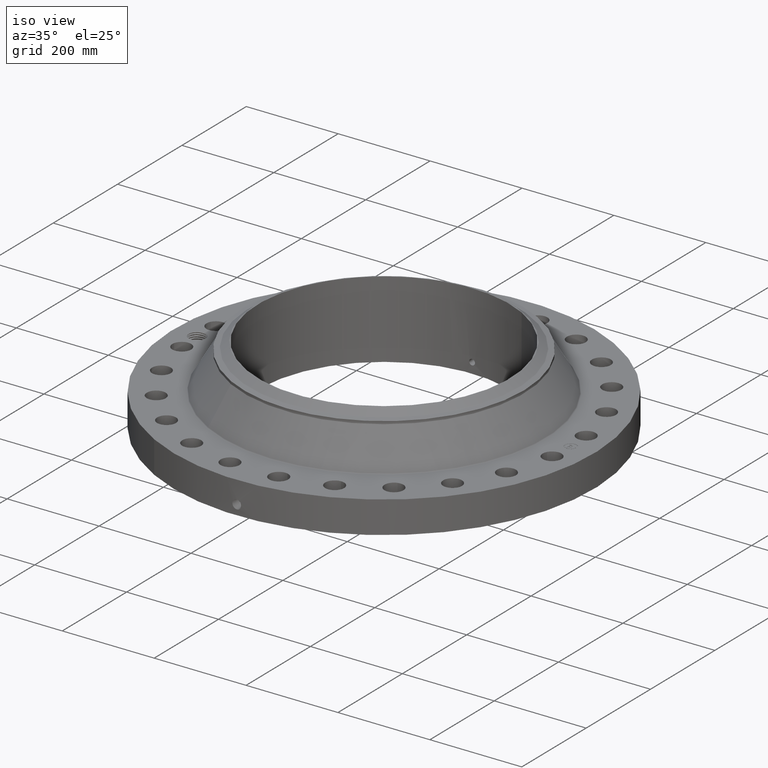
[diagram: clean part render]
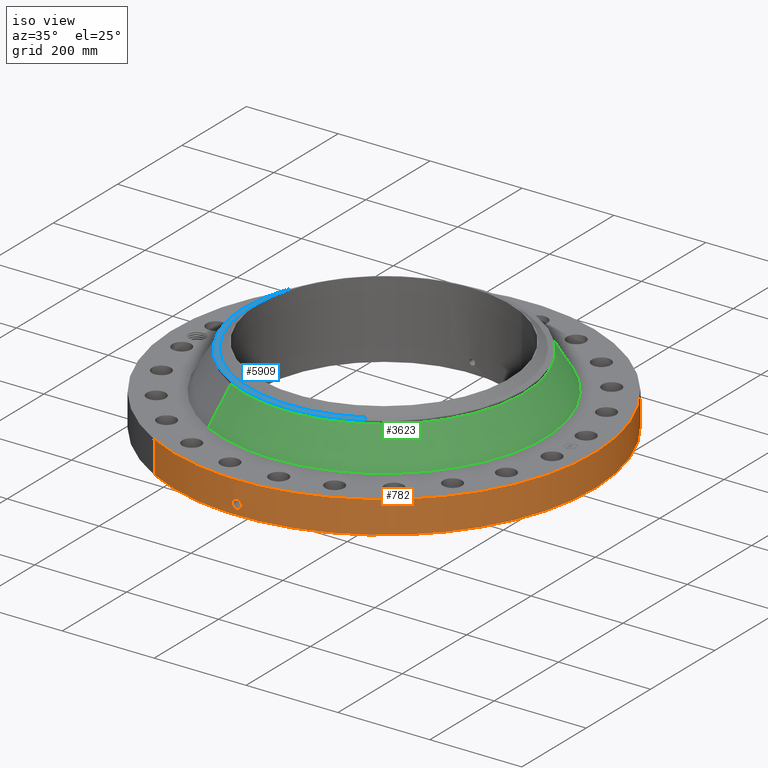
[diagram: same view with three faces highlighted in distinct colors, each labeled with its STEP entity id]
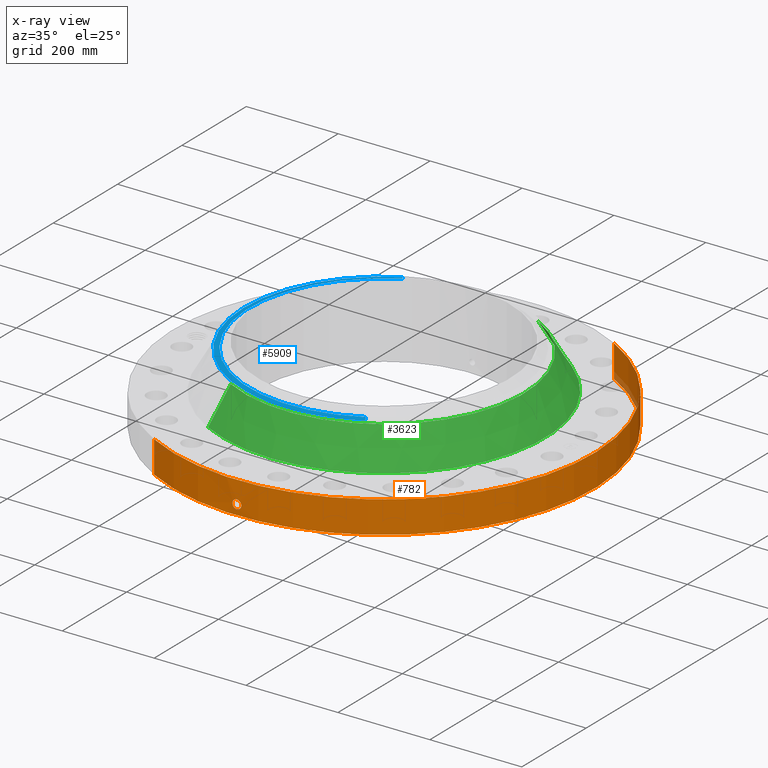
[diagram: x-ray of the same camera — body ghosted, the three highlighted faces saturated]
A machine part, iso view with three faces highlighted in distinct colors.
The next image is the same camera in x-ray (body ghosted, the three faces saturated) — at least one of them is partly hidden behind the body in this view.
Their STEP definitions:

[orange] entity #782 — the highlighted cylindrical surface (partial cylindrical patch) has radius 457.2 mm, axis along (0, 0, -1).
#38=AXIS2_PLACEMENT_3D('Cylinder Axis2P3D',#35,#36,#37) ;
#169=AXIS2_PLACEMENT_3D('Circle Axis2P3D',#167,#168,$) ;
#686=AXIS2_PLACEMENT_3D('Circle Axis2P3D',#684,#685,$) ;
#35=CARTESIAN_POINT('Axis2P3D Location',(0.,0.,3.37000000001)) ;
#44=CARTESIAN_POINT('Vertex',(-8.62965969491,-15.7964861141,0.0600000000002)) ;
#46=CARTESIAN_POINT('Vertex',(8.62965969491,15.7964861141,0.0600000000002)) ;
#49=CARTESIAN_POINT('Line Origine',(-8.62965969491,-15.7964861141,1.43500000001)) ;
#53=CARTESIAN_POINT('Vertex',(-8.62965969491,-15.7964861141,2.81000000001)) ;
#60=CARTESIAN_POINT('Vertex',(8.62965969491,15.7964861141,2.81000000001)) ;
#63=CARTESIAN_POINT('Line Origine',(8.62965969491,15.7964861141,1.43500000001)) ;
#167=CARTESIAN_POINT('Axis2P3D Location',(0.,0.,0.0600000000002)) ;
#684=CARTESIAN_POINT('Axis2P3D Location',(0.,0.,2.81000000001)) ;
#696=CARTESIAN_POINT('Control Point',(0.000715916272964,-17.9999999858,1.29411846164)) ;
#697=CARTESIAN_POINT('Control Point',(0.0187947670174,-17.9999992668,1.29408195945)) ;
#698=CARTESIAN_POINT('Control Point',(0.0368704907865,-17.9999710998,1.29265734614)) ;
#699=CARTESIAN_POINT('Control Point',(0.0547316628355,-17.99991679,1.28986144223)) ;
#700=CARTESIAN_POINT('Vertex',(0.00071561728658,-17.9999999858,1.2941185108)) ;
#702=CARTESIAN_POINT('Vertex',(0.054723070488,-17.9999170677,1.28986280481)) ;
#706=CARTESIAN_POINT('Control Point',(0.054722976633,-17.9999168164,1.28986226213)) ;
#707=CARTESIAN_POINT('Control Point',(0.0953738332129,-17.9997932305,1.28552531456)) ;
#708=CARTESIAN_POINT('Control Point',(0.135409945982,-17.9995285052,1.27380449255)) ;
#709=CARTESIAN_POINT('Control Point',(0.172317078189,-17.9991751707,1.25545477223)) ;
#710=CARTESIAN_POINT('Vertex',(0.172317078189,-17.9991751707,1.25545477223)) ;
#714=CARTESIAN_POINT('Control Point',(0.0311785035352,-17.9999729973,0.531201562891)) ;
#715=CARTESIAN_POINT('Control Point',(0.0718024995045,-17.9999026308,0.536338161167)) ;
#716=CARTESIAN_POINT('Control Point',(0.111634499072,-17.9997190308,0.546728855781)) ;
#717=CARTESIAN_POINT('Control Point',(0.149741617215,-17.9994324956,0.562218507269)) ;
#718=CARTESIAN_POINT('Control Point',(0.239620396421,-17.9985293262,0.613169843024)) ;
#719=CARTESIAN_POINT('Control Point',(0.308806249517,-17.9974126624,0.690006161433)) ;
#720=CARTESIAN_POINT('Control Point',(0.340722284384,-17.9967939004,0.743754792599)) ;
#721=CARTESIAN_POINT('Control Point',(0.375373751697,-17.9960901162,0.84105982162)) ;
#722=CARTESIAN_POINT('Control Point',(0.377750076791,-17.9960345675,0.942362779088)) ;
#723=CARTESIAN_POINT('Control Point',(0.373383149171,-17.9961284653,0.982905031365)) ;
#724=CARTESIAN_POINT('Control Point',(0.350799748725,-17.9966011635,1.07574548386)) ;
#725=CARTESIAN_POINT('Control Point',(0.300979187992,-17.9975215948,1.15733410864)) ;
#726=CARTESIAN_POINT('Control Point',(0.264028464039,-17.9981368945,1.19844198089)) ;
#727=CARTESIAN_POINT('Control Point',(0.220353851512,-17.9987152854,1.23157154258)) ;
#728=CARTESIAN_POINT('Control Point',(0.172317078189,-17.9991751707,1.25545477223)) ;
#729=CARTESIAN_POINT('Vertex',(0.0311785035352,-17.9999729973,0.531201562891)) ;
#733=CARTESIAN_POINT('Control Point',(0.0311785035352,-17.9999729973,0.531201562891)) ;
#734=CARTESIAN_POINT('Control Point',(0.0207810348001,-17.9999910072,0.530876353489)) ;
#735=CARTESIAN_POINT('Control Point',(0.0103754059314,-18.0000000016,0.5309342353)) ;
#736=CARTESIAN_POINT('Control Point',(-2.72878352964E-006,-18.0000000001,0.531374667806)) ;
#737=CARTESIAN_POINT('Vertex',(-2.72878354635E-006,-18.0000000001,0.531374667806)) ;
#741=CARTESIAN_POINT('Control Point',(-0.192490992805,-17.9989707267,0.587658904988)) ;
#742=CARTESIAN_POINT('Control Point',(-0.14895354262,-17.9994363404,0.562184957804)) ;
#743=CARTESIAN_POINT('Control Point',(-0.101107482204,-17.9998082664,0.543830382587)) ;
#744=CARTESIAN_POINT('Control Point',(-0.0508027302919,-17.9999999924,0.533530543737)) ;
#745=CARTESIAN_POINT('Control Point',(-2.72878352964E-006,-18.0000000001,0.531374667806)) ;
#746=CARTESIAN_POINT('Vertex',(-0.192490992805,-17.9989707267,0.587658904988)) ;
#750=CARTESIAN_POINT('Control Point',(-0.192490992805,-17.9989707267,0.587658904988)) ;
#751=CARTESIAN_POINT('Control Point',(-0.249225140634,-17.9983639802,0.620854295781)) ;
#752=CARTESIAN_POINT('Control Point',(-0.299118627371,-17.9976068279,0.665382621906)) ;
#753=CARTESIAN_POINT('Control Point',(-0.33901673598,-17.9968404577,0.719620461572)) ;
#754=CARTESIAN_POINT('Control Point',(-0.382904584864,-17.9959349998,0.817936937111)) ;
#755=CARTESIAN_POINT('Control Point',(-0.391223224511,-17.9957468042,0.923210605864)) ;
#756=CARTESIAN_POINT('Control Point',(-0.389017375881,-17.9957960737,0.963428947578)) ;
#757=CARTESIAN_POINT('Control Point',(-0.369349141315,-17.9962276358,1.06643517053)) ;
#758=CARTESIAN_POINT('Control Point',(-0.315771155099,-17.9972806993,1.15717933691)) ;
#759=CARTESIAN_POINT('Control Point',(-0.271217967018,-17.9980645582,1.20479213959)) ;
#760=CARTESIAN_POINT('Control Point',(-0.190427156297,-17.9991387671,1.26072522641)) ;
#761=CARTESIAN_POINT('Control Point',(-0.0985097274422,-17.9997740421,1.28789388359)) ;
#762=CARTESIAN_POINT('Control Point',(-0.0657534719703,-17.9999256067,1.29368529426)) ;
#763=CARTESIAN_POINT('Control Point',(-0.0327250899305,-18.0000000471,1.29575873174)) ;
#764=CARTESIAN_POINT('Control Point',(2.58579355424E-005,-18.0000000001,1.29415298429)) ;
#765=CARTESIAN_POINT('Vertex',(2.58579355492E-005,-18.0000000001,1.29415298429)) ;
#769=CARTESIAN_POINT('Control Point',(0.000715617277093,-17.9999999858,1.29411851078)) ;
#770=CARTESIAN_POINT('Control Point',(0.000370762243298,-17.9999999996,1.29413607398)) ;
#771=CARTESIAN_POINT('Control Point',(2.58579404369E-005,-18.0000000001,1.29415298429)) ;
#36=DIRECTION('Axis2P3D Direction',(0.,0.,-0.0393700787402)) ;
#37=DIRECTION('Axis2P3D XDirection',(0.0188750212049,0.0345504945626,0.)) ;
#50=DIRECTION('Vector Direction',(0.,0.,-0.0393700787402)) ;
#64=DIRECTION('Vector Direction',(0.,0.,-0.0393700787402)) ;
#168=DIRECTION('Axis2P3D Direction',(0.,0.,-0.0393700787402)) ;
#685=DIRECTION('Axis2P3D Direction',(0.,0.,-0.0393700787402)) ;
#51=VECTOR('Line Direction',#50,0.0393700787402) ;
#65=VECTOR('Line Direction',#64,0.0393700787402) ;
#690=ORIENTED_EDGE('',*,*,#171,.F.) ;
#691=ORIENTED_EDGE('',*,*,#67,.T.) ;
#692=ORIENTED_EDGE('',*,*,#688,.T.) ;
#693=ORIENTED_EDGE('',*,*,#55,.F.) ;
#774=ORIENTED_EDGE('',*,*,#704,.T.) ;
#775=ORIENTED_EDGE('',*,*,#712,.T.) ;
#776=ORIENTED_EDGE('',*,*,#731,.F.) ;
#777=ORIENTED_EDGE('',*,*,#739,.T.) ;
#778=ORIENTED_EDGE('',*,*,#748,.F.) ;
#779=ORIENTED_EDGE('',*,*,#767,.T.) ;
#780=ORIENTED_EDGE('',*,*,#772,.F.) ;
#781=FACE_BOUND('',#773,.T.) ;
#782=ADVANCED_FACE('PartBody',(#694,#781),#39,.T.) ;
#695=B_SPLINE_CURVE_WITH_KNOTS('',3,(#696,#697,#698,#699),.UNSPECIFIED.,.F.,.U.,(4,4),(34.6167850496,36.6224615039),.UNSPECIFIED.) ;
#705=B_SPLINE_CURVE_WITH_KNOTS('',3,(#706,#707,#708,#709),.UNSPECIFIED.,.F.,.U.,(4,4),(0.,4.59363155633),.UNSPECIFIED.) ;
#713=B_SPLINE_CURVE_WITH_KNOTS('',5,(#714,#715,#716,#717,#718,#719,#720,#721,#722,#723,#724,#725,#726,#727,#728),.UNSPECIFIED.,.F.,.U.,(6,3,3,3,6),(0.,7.11615119476,18.0025199728,25.3409691023,35.3057659857),.UNSPECIFIED.) ;
#732=B_SPLINE_CURVE_WITH_KNOTS('',3,(#733,#734,#735,#736),.UNSPECIFIED.,.F.,.U.,(4,4),(0.,1.08463646199),.UNSPECIFIED.) ;
#740=B_SPLINE_CURVE_WITH_KNOTS('',4,(#741,#742,#743,#744,#745),.UNSPECIFIED.,.F.,.U.,(5,5),(0.,7.0789257614),.UNSPECIFIED.) ;
#749=B_SPLINE_CURVE_WITH_KNOTS('',5,(#750,#751,#752,#753,#754,#755,#756,#757,#758,#759,#760,#761,#762,#763,#764),.UNSPECIFIED.,.F.,.U.,(6,3,3,3,6),(0.,11.5307860792,18.6312315283,30.131212034,36.2530440907),.UNSPECIFIED.) ;
#768=B_SPLINE_CURVE_WITH_KNOTS('',2,(#769,#770,#771),.UNSPECIFIED.,.F.,.U.,(3,3),(1.01704989143,1.04283780222),.UNSPECIFIED.) ;
#170=CIRCLE('generated circle',#169,18.0000000001) ;
#687=CIRCLE('generated circle',#686,18.0000000001) ;
#39=CYLINDRICAL_SURFACE('generated cylinder',#38,18.0000000001) ;
#55=EDGE_CURVE('',#45,#54,#52,.F.) ;
#67=EDGE_CURVE('',#47,#61,#66,.F.) ;
#171=EDGE_CURVE('',#47,#45,#170,.T.) ;
#688=EDGE_CURVE('',#61,#54,#687,.T.) ;
#704=EDGE_CURVE('',#701,#703,#695,.T.) ;
#712=EDGE_CURVE('',#703,#711,#705,.T.) ;
#731=EDGE_CURVE('',#730,#711,#713,.T.) ;
#739=EDGE_CURVE('',#730,#738,#732,.T.) ;
#748=EDGE_CURVE('',#747,#738,#740,.T.) ;
#767=EDGE_CURVE('',#747,#766,#749,.T.) ;
#772=EDGE_CURVE('',#701,#766,#768,.T.) ;
#689=EDGE_LOOP('',(#690,#691,#692,#693)) ;
#773=EDGE_LOOP('',(#774,#775,#776,#777,#778,#779,#780)) ;
#694=FACE_OUTER_BOUND('',#689,.T.) ;
#52=LINE('Line',#49,#51) ;
#66=LINE('Line',#63,#65) ;
#45=VERTEX_POINT('',#44) ;
#47=VERTEX_POINT('',#46) ;
#54=VERTEX_POINT('',#53) ;
#61=VERTEX_POINT('',#60) ;
#701=VERTEX_POINT('',#700) ;
#703=VERTEX_POINT('',#702) ;
#711=VERTEX_POINT('',#710) ;
#730=VERTEX_POINT('',#729) ;
#738=VERTEX_POINT('',#737) ;
#747=VERTEX_POINT('',#746) ;
#766=VERTEX_POINT('',#765) ;

[blue] entity #5909 — the highlighted conical surface has half-angle 80 deg.
#4431=AXIS2_PLACEMENT_3D('Circle Axis2P3D',#4429,#4430,$) ;
#4444=AXIS2_PLACEMENT_3D('Circle Axis2P3D',#4442,#4443,$) ;
#5244=AXIS2_PLACEMENT_3D('Circle Axis2P3D',#5242,#5243,$) ;
#5882=AXIS2_PLACEMENT_3D('Cone Axis2P3D',#5879,#5880,#5881) ;
#4412=CARTESIAN_POINT('Vertex',(-5.75310646327,-10.5309907427,6.0833902388)) ;
#4426=CARTESIAN_POINT('Vertex',(5.75310646327,-10.5309907427,6.0833902388)) ;
#4429=CARTESIAN_POINT('Axis2P3D Location',(0.,0.,6.0833902388)) ;
#4442=CARTESIAN_POINT('Axis2P3D Location',(0.,0.,6.0833902388)) ;
#4446=CARTESIAN_POINT('Vertex',(-5.75310646327,10.5309907427,6.0833902388)) ;
#5239=CARTESIAN_POINT('Vertex',(-5.54095769476,10.1426550268,6.16141601924)) ;
#5242=CARTESIAN_POINT('Axis2P3D Location',(0.,0.,6.16141601924)) ;
#5246=CARTESIAN_POINT('Vertex',(5.54095769476,-10.1426550268,6.16141601924)) ;
#5879=CARTESIAN_POINT('Axis2P3D Location',(0.,0.,6.16141601924)) ;
#5884=CARTESIAN_POINT('Line Origine',(-5.64703207902,10.3368228848,6.12240312902)) ;
#5889=CARTESIAN_POINT('Line Origine',(5.64703207902,-10.3368228848,6.12240312902)) ;
#4430=DIRECTION('Axis2P3D Direction',(0.,0.,-0.0393700787402)) ;
#4443=DIRECTION('Axis2P3D Direction',(0.,0.,-0.0393700787402)) ;
#5243=DIRECTION('Axis2P3D Direction',(0.,0.,0.0393700787402)) ;
#5880=DIRECTION('Axis2P3D Direction',(-0.,-0.,-0.0393700787402)) ;
#5881=DIRECTION('Axis2P3D XDirection',(0.0188750212049,-0.0345504945626,0.)) ;
#5885=DIRECTION('Vector Direction',(-0.0185882672208,0.0340255949157,-0.00683654242783)) ;
#5890=DIRECTION('Vector Direction',(0.0185882672208,-0.0340255949157,-0.00683654242783)) ;
#5886=VECTOR('Line Direction',#5885,0.0393700787402) ;
#5891=VECTOR('Line Direction',#5890,0.0393700787402) ;
#5903=ORIENTED_EDGE('',*,*,#5893,.F.) ;
#5904=ORIENTED_EDGE('',*,*,#5248,.F.) ;
#5905=ORIENTED_EDGE('',*,*,#5888,.T.) ;
#5906=ORIENTED_EDGE('',*,*,#4448,.T.) ;
#5907=ORIENTED_EDGE('',*,*,#4433,.F.) ;
#5909=ADVANCED_FACE('PartBody',(#5908),#5883,.T.) ;
#4432=CIRCLE('generated circle',#4431,12.) ;
#4445=CIRCLE('generated circle',#4444,12.) ;
#5245=CIRCLE('generated circle',#5244,11.55749381) ;
#5883=CONICAL_SURFACE('Cone',#5882,11.55749381,1.3962634016) ;
#4433=EDGE_CURVE('',#4427,#4413,#4432,.T.) ;
#4448=EDGE_CURVE('',#4447,#4413,#4445,.F.) ;
#5248=EDGE_CURVE('',#5240,#5247,#5245,.T.) ;
#5888=EDGE_CURVE('',#5240,#4447,#5887,.T.) ;
#5893=EDGE_CURVE('',#5247,#4427,#5892,.T.) ;
#5902=EDGE_LOOP('',(#5903,#5904,#5905,#5906,#5907)) ;
#5908=FACE_OUTER_BOUND('',#5902,.T.) ;
#5887=LINE('Line',#5884,#5886) ;
#5892=LINE('Line',#5889,#5891) ;
#4413=VERTEX_POINT('',#4412) ;
#4427=VERTEX_POINT('',#4426) ;
#4447=VERTEX_POINT('',#4446) ;
#5240=VERTEX_POINT('',#5239) ;
#5247=VERTEX_POINT('',#5246) ;

[green] entity #3623 — the highlighted conical surface has half-angle 30.793 deg.
#2882=AXIS2_PLACEMENT_3D('Circle Axis2P3D',#2880,#2881,$) ;
#3596=AXIS2_PLACEMENT_3D('Cone Axis2P3D',#3593,#3594,#3595) ;
#3607=AXIS2_PLACEMENT_3D('Circle Axis2P3D',#3605,#3606,$) ;
#2877=CARTESIAN_POINT('Vertex',(6.60413308278,12.0887845206,2.86856779196)) ;
#2880=CARTESIAN_POINT('Axis2P3D Location',(0.,0.,2.86856779196)) ;
#2884=CARTESIAN_POINT('Vertex',(-6.60413308278,-12.0887845206,2.86856779196)) ;
#3593=CARTESIAN_POINT('Axis2P3D Location',(0.,0.,5.84716976636)) ;
#3598=CARTESIAN_POINT('Line Origine',(6.17861977303,11.3098876317,4.35786877916)) ;
#3602=CARTESIAN_POINT('Vertex',(5.75310646327,10.5309907427,5.84716976636)) ;
#3605=CARTESIAN_POINT('Axis2P3D Location',(0.,0.,5.84716976636)) ;
#3609=CARTESIAN_POINT('Vertex',(-5.75310646327,-10.5309907427,5.84716976636)) ;
#3612=CARTESIAN_POINT('Line Origine',(-6.17861977303,-11.3098876317,4.35786877916)) ;
#2881=DIRECTION('Axis2P3D Direction',(0.,0.,-0.0393700787402)) ;
#3594=DIRECTION('Axis2P3D Direction',(0.,0.,-0.0393700787402)) ;
#3595=DIRECTION('Axis2P3D XDirection',(-0.0188750212049,-0.0345504945626,0.)) ;
#3599=DIRECTION('Vector Direction',(0.00966278524701,0.0176876097522,-0.0338198483517)) ;
#3606=DIRECTION('Axis2P3D Direction',(0.,0.,-0.0393700787402)) ;
#3613=DIRECTION('Vector Direction',(-0.00966278524701,-0.0176876097522,-0.0338198483517)) ;
#3600=VECTOR('Line Direction',#3599,0.0393700787402) ;
#3614=VECTOR('Line Direction',#3613,0.0393700787402) ;
#3618=ORIENTED_EDGE('',*,*,#2886,.F.) ;
#3619=ORIENTED_EDGE('',*,*,#3604,.T.) ;
#3620=ORIENTED_EDGE('',*,*,#3611,.T.) ;
#3621=ORIENTED_EDGE('',*,*,#3616,.F.) ;
#3623=ADVANCED_FACE('PartBody',(#3622),#3597,.T.) ;
#2883=CIRCLE('generated circle',#2882,13.7750965499) ;
#3608=CIRCLE('generated circle',#3607,12.) ;
#3597=CONICAL_SURFACE('Cone',#3596,12.,0.537435916281) ;
#2886=EDGE_CURVE('',#2878,#2885,#2883,.T.) ;
#3604=EDGE_CURVE('',#2878,#3603,#3601,.F.) ;
#3611=EDGE_CURVE('',#3603,#3610,#3608,.T.) ;
#3616=EDGE_CURVE('',#2885,#3610,#3615,.F.) ;
#3617=EDGE_LOOP('',(#3618,#3619,#3620,#3621)) ;
#3622=FACE_OUTER_BOUND('',#3617,.T.) ;
#3601=LINE('Line',#3598,#3600) ;
#3615=LINE('Line',#3612,#3614) ;
#2878=VERTEX_POINT('',#2877) ;
#2885=VERTEX_POINT('',#2884) ;
#3603=VERTEX_POINT('',#3602) ;
#3610=VERTEX_POINT('',#3609) ;